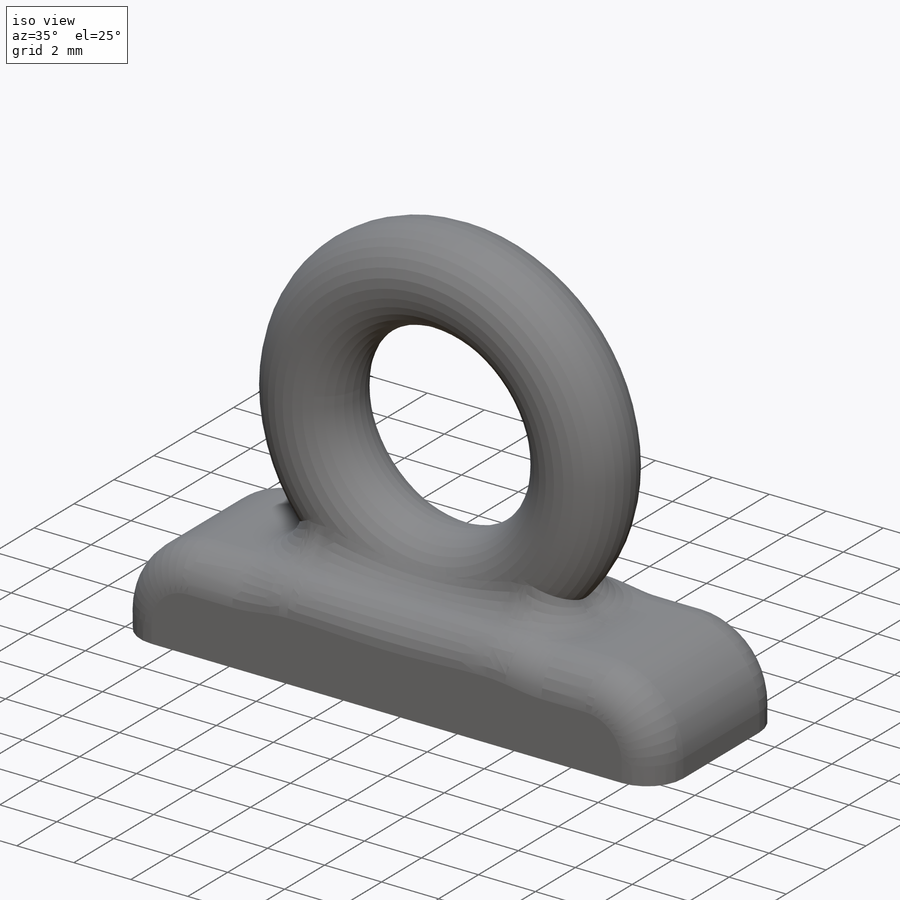
[diagram: iso view]
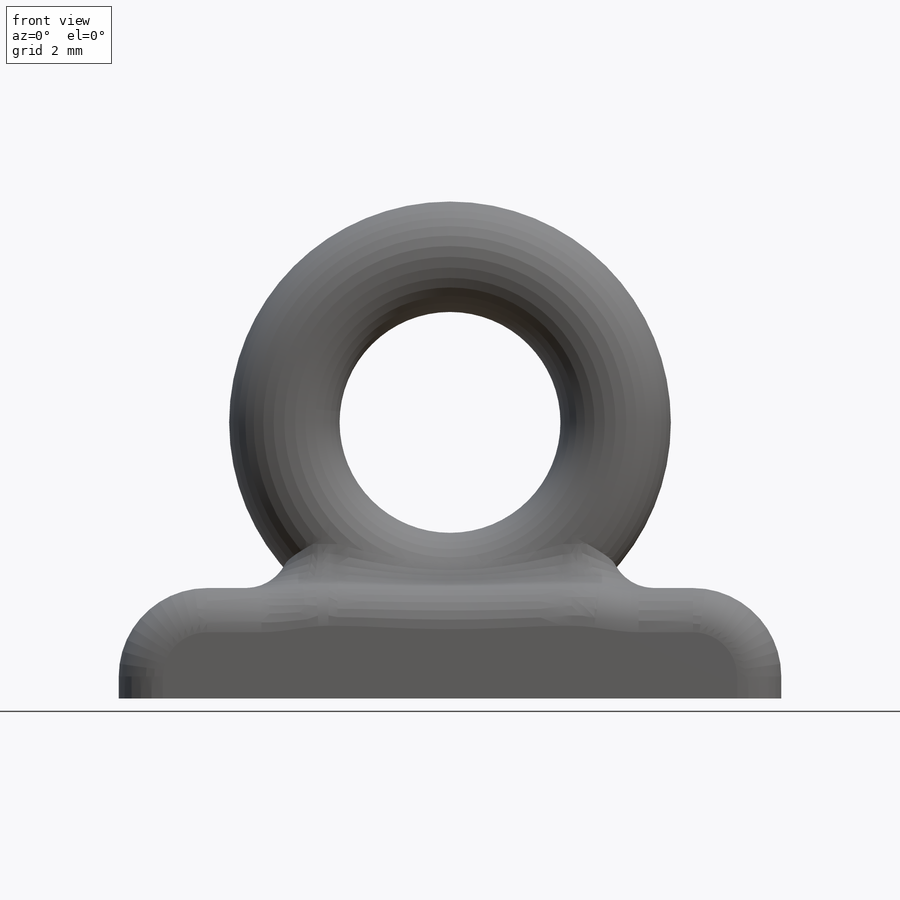
[diagram: front view]
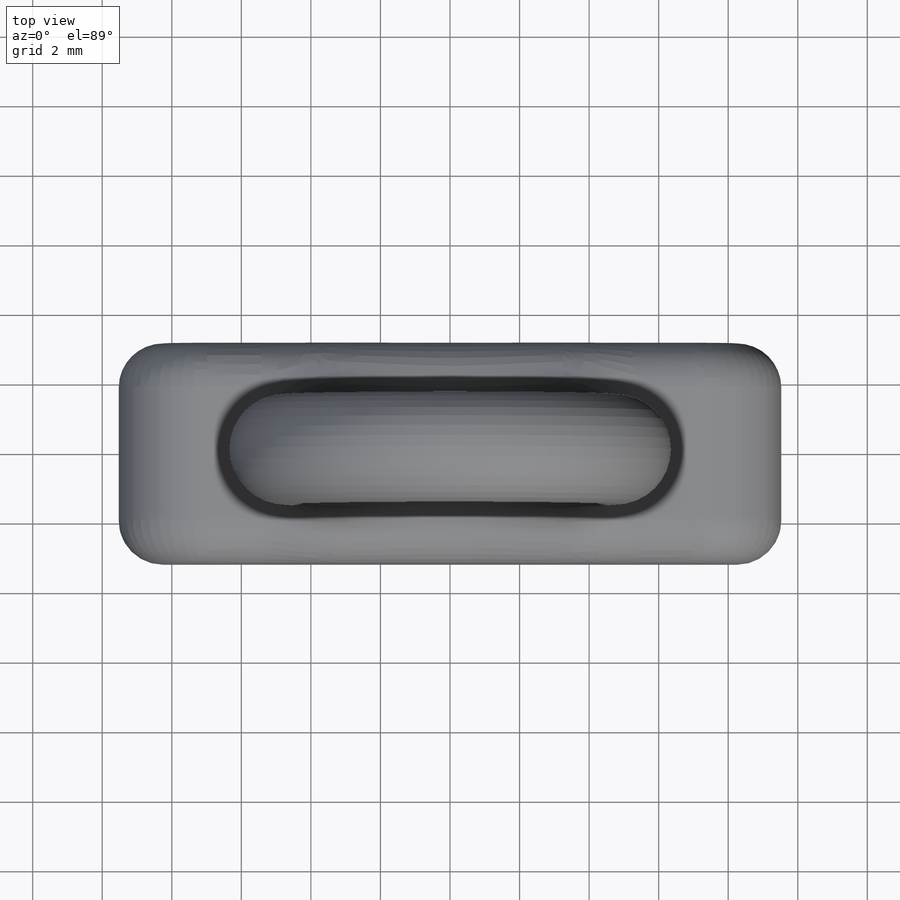
[diagram: top view]
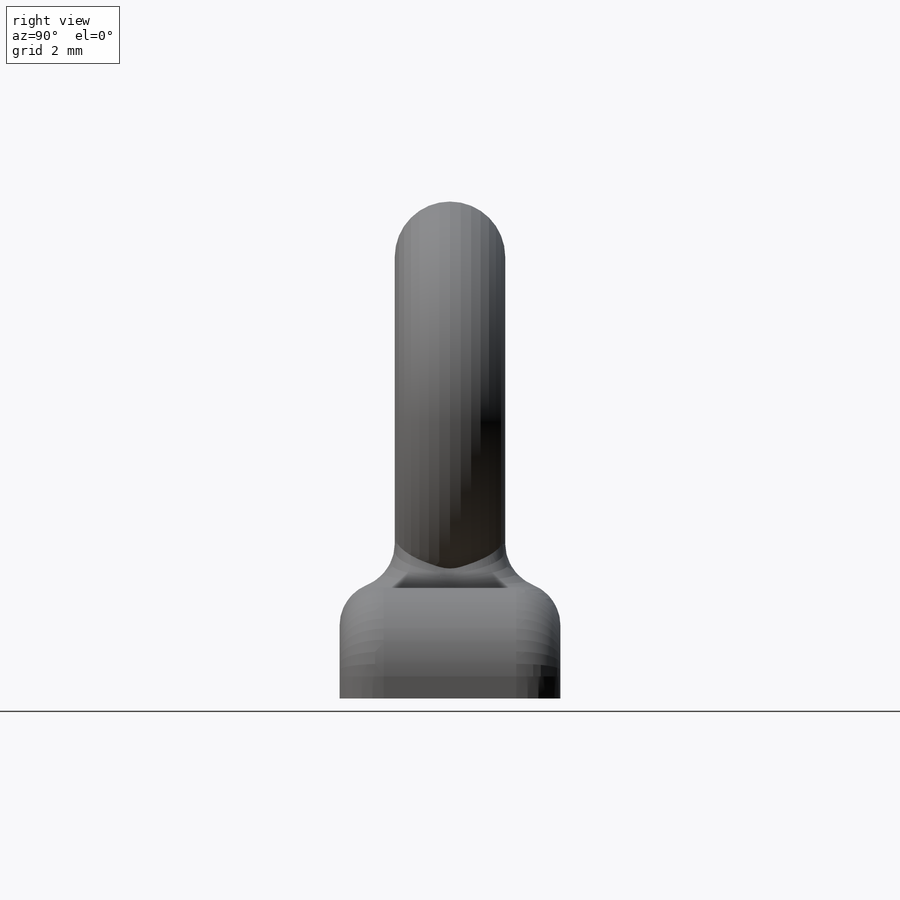
[diagram: right view]
SOLIDWORKS PART (.sldprt)
format: sldprt  version: not decoded by parser v0  size: 401,408 bytes
history: native  units: mm
features: fillet x5, sketch x4, extrude x2, material x1, sweep x1 (+11 scaffold rows collapsed)
feature tree (24):
  scaffold x11  (default folders/planes/origin — collapsed)
  material  "Material <not specified>"
  sketch  "Sketch3"  dims[D1=9.525mm D2=6.35mm]
  sketch  "Sketch4"  dims[D1=3.175mm]
  sweep  "Sweep1"
  sketch  "Sketch5"  dims[D1=~11.474779mm]
  extrude  "Boss-Extrude2"  Depth=3.175mm
  sketch  "Sketch6"  dims[D1=6.35mm D2=19.05mm]
  extrude  "Boss-Extrude3"  Depth=3.175mm
  fillet  "Fillet1"  Radius=2.54mm
  fillet  "Fillet2"  Radius=2.54mm
  fillet  "Fillet4"  Radius=1.27mm
  fillet  "Fillet5"  Radius=1.27mm
  fillet  "Fillet6"  Radius=1.27mm
decode coverage: 11 of 12 modeling features carry decoded parameters
note: ~ marks probable driven/reference dimensions
note: suppression state not decoded; provenance and decode notes live in map.json
